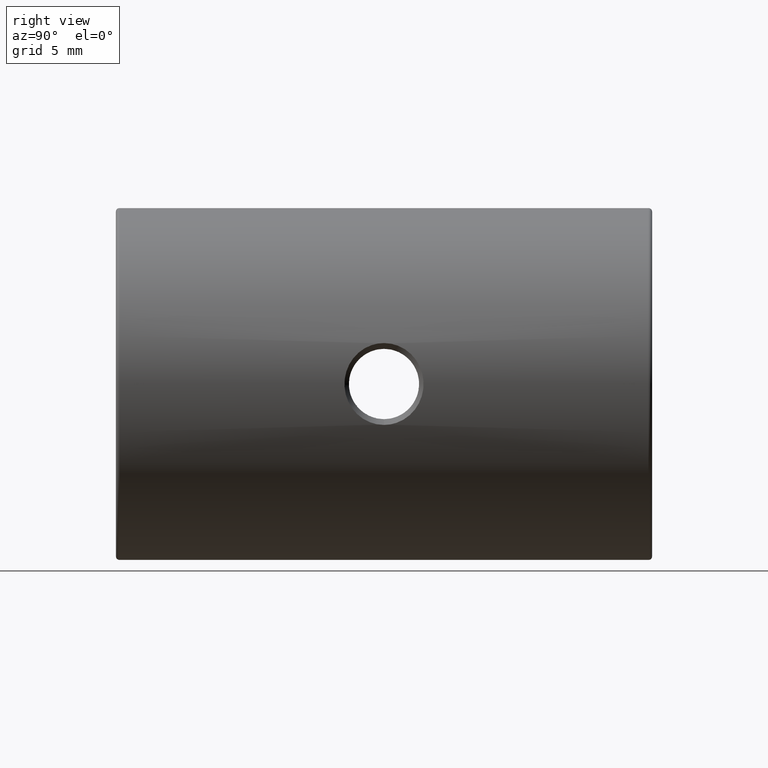
[diagram: clean part render]
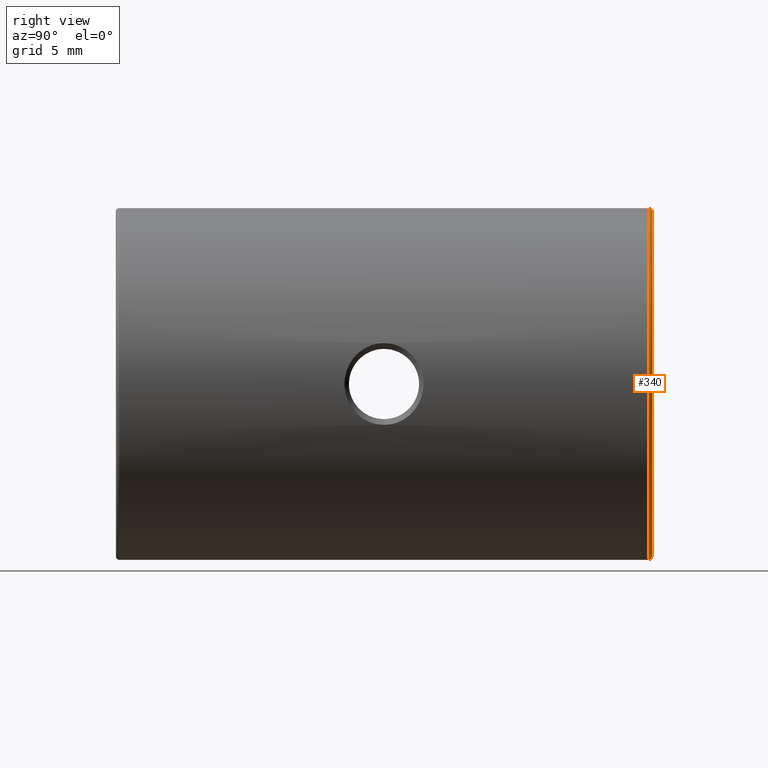
[diagram: same view with one face highlighted and labeled with its STEP entity id]
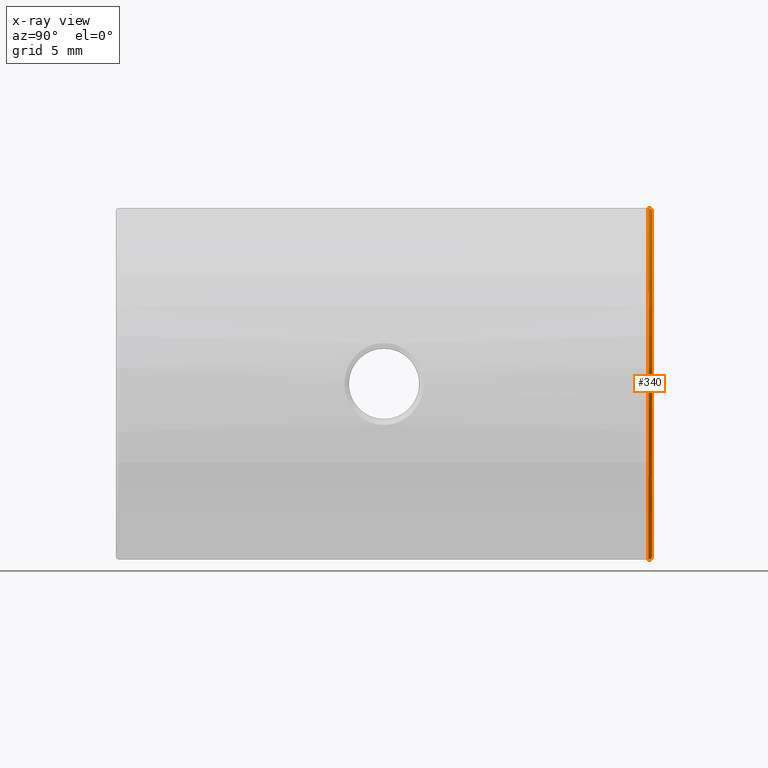
[diagram: x-ray of the same camera — body ghosted, the highlighted face saturated]
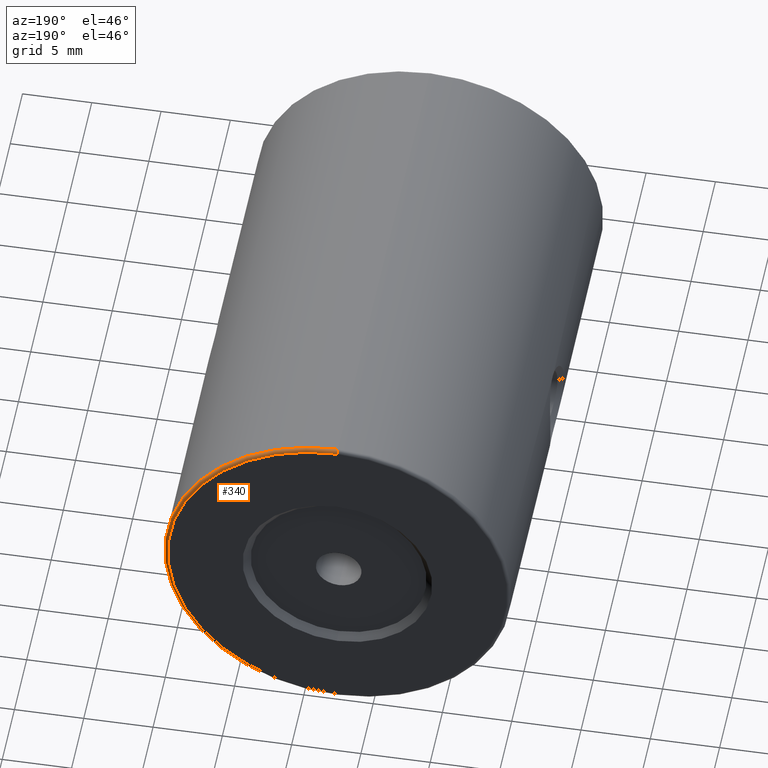
[diagram: same view with one face highlighted and labeled with its STEP entity id]
A machine part, right view. The second image highlights one B-rep face of the part: STEP entity #340.
The next image is the same camera in x-ray: the body ghosted, the highlighted face saturated — about 0% of this face is hidden behind the body in this view.
A second angle (auxiliary view) of the same face is appended — the face is thin or edge-on in the first view.
In plain terms, the highlighted toroidal blend (fillet) surface has major radius 12.25 mm and minor (blend) radius 0.25 mm.
Its self-contained STEP definition (entity closure, byte-faithful):
#157 = AXIS2_PLACEMENT_3D ( 'NONE', #441, #1273, #3167 ) ;
#177 = DIRECTION ( 'NONE',  ( 0.0000000000000000000, 0.0000000000000000000, 1.000000000000000000 ) ) ;
#247 = EDGE_CURVE ( 'NONE', #2615, #2050, #2785, .T. ) ;
#265 = DIRECTION ( 'NONE',  ( 0.0000000000000000000, 0.0000000000000000000, 1.000000000000000000 ) ) ;
#340 = ADVANCED_FACE ( 'NONE', ( #1292 ), #1715, .T. ) ;
#357 = ORIENTED_EDGE ( 'NONE', *, *, #2277, .T. ) ;
#376 = CARTESIAN_POINT ( 'NONE',  ( -22.50520183104453409, 20.19825218476939099, 37.50000000000000711 ) ) ;
#380 = EDGE_LOOP ( 'NONE', ( #1154, #357, #3031, #2012 ) ) ;
#421 = EDGE_CURVE ( 'NONE', #2050, #1556, #2105, .T. ) ;
#441 = CARTESIAN_POINT ( 'NONE',  ( -22.50520183104453409, 20.19825218476939099, 62.25000000000000000 ) ) ;
#579 = AXIS2_PLACEMENT_3D ( 'NONE', #1905, #2663, #265 ) ;
#1014 = CARTESIAN_POINT ( 'NONE',  ( -22.50520183104453409, 20.44825218476939099, 62.25000000000000000 ) ) ;
#1035 = EDGE_CURVE ( 'NONE', #1434, #2615, #2367, .T. ) ;
#1154 = ORIENTED_EDGE ( 'NONE', *, *, #1035, .F. ) ;
#1161 = CARTESIAN_POINT ( 'NONE',  ( -22.50520183104453409, 20.19825218476939099, 37.75000000000000711 ) ) ;
#1255 = CARTESIAN_POINT ( 'NONE',  ( -22.50520183104453409, 20.44825218476939099, 50.00000000000000000 ) ) ;
#1273 = DIRECTION ( 'NONE',  ( -1.000000000000000000, 0.0000000000000000000, 0.0000000000000000000 ) ) ;
#1292 = FACE_OUTER_BOUND ( 'NONE', #380, .T. ) ;
#1379 = AXIS2_PLACEMENT_3D ( 'NONE', #2889, #2574, #177 ) ;
#1405 = DIRECTION ( 'NONE',  ( 0.0000000000000000000, 0.0000000000000000000, -1.000000000000000000 ) ) ;
#1434 = VERTEX_POINT ( 'NONE', #376 ) ;
#1556 = VERTEX_POINT ( 'NONE', #1940 ) ;
#1715 = TOROIDAL_SURFACE ( 'NONE', #1379, 12.25000000000000000, 0.2500000000000000000 ) ;
#1796 = DIRECTION ( 'NONE',  ( 0.0000000000000000000, 1.000000000000000000, 0.0000000000000000000 ) ) ;
#1905 = CARTESIAN_POINT ( 'NONE',  ( -22.50520183104453409, 20.19825218476939099, 50.00000000000000000 ) ) ;
#1940 = CARTESIAN_POINT ( 'NONE',  ( -22.50520183104453409, 20.44825218476939099, 37.75000000000000711 ) ) ;
#2012 = ORIENTED_EDGE ( 'NONE', *, *, #247, .F. ) ;
#2050 = VERTEX_POINT ( 'NONE', #1014 ) ;
#2105 = CIRCLE ( 'NONE', #3339, 12.24999999999999645 ) ;
#2277 = EDGE_CURVE ( 'NONE', #1434, #1556, #3304, .T. ) ;
#2367 = CIRCLE ( 'NONE', #579, 12.49999999999999645 ) ;
#2574 = DIRECTION ( 'NONE',  ( 0.0000000000000000000, 1.000000000000000000, 0.0000000000000000000 ) ) ;
#2615 = VERTEX_POINT ( 'NONE', #3227 ) ;
#2663 = DIRECTION ( 'NONE',  ( -0.0000000000000000000, -1.000000000000000000, -0.0000000000000000000 ) ) ;
#2785 = CIRCLE ( 'NONE', #157, 0.2500000000000002220 ) ;
#2793 = DIRECTION ( 'NONE',  ( 1.000000000000000000, -0.0000000000000000000, 1.224646799147353207E-16 ) ) ;
#2852 = AXIS2_PLACEMENT_3D ( 'NONE', #1161, #2793, #1405 ) ;
#2854 = DIRECTION ( 'NONE',  ( 0.0000000000000000000, 0.0000000000000000000, 1.000000000000000000 ) ) ;
#2889 = CARTESIAN_POINT ( 'NONE',  ( -22.50520183104453409, 20.19825218476939099, 50.00000000000000000 ) ) ;
#3031 = ORIENTED_EDGE ( 'NONE', *, *, #421, .F. ) ;
#3167 = DIRECTION ( 'NONE',  ( 0.0000000000000000000, 0.0000000000000000000, 1.000000000000000000 ) ) ;
#3227 = CARTESIAN_POINT ( 'NONE',  ( -22.50520183104453409, 20.19825218476939099, 62.50000000000000000 ) ) ;
#3304 = CIRCLE ( 'NONE', #2852, 0.2500000000000002220 ) ;
#3339 = AXIS2_PLACEMENT_3D ( 'NONE', #1255, #1796, #2854 ) ;